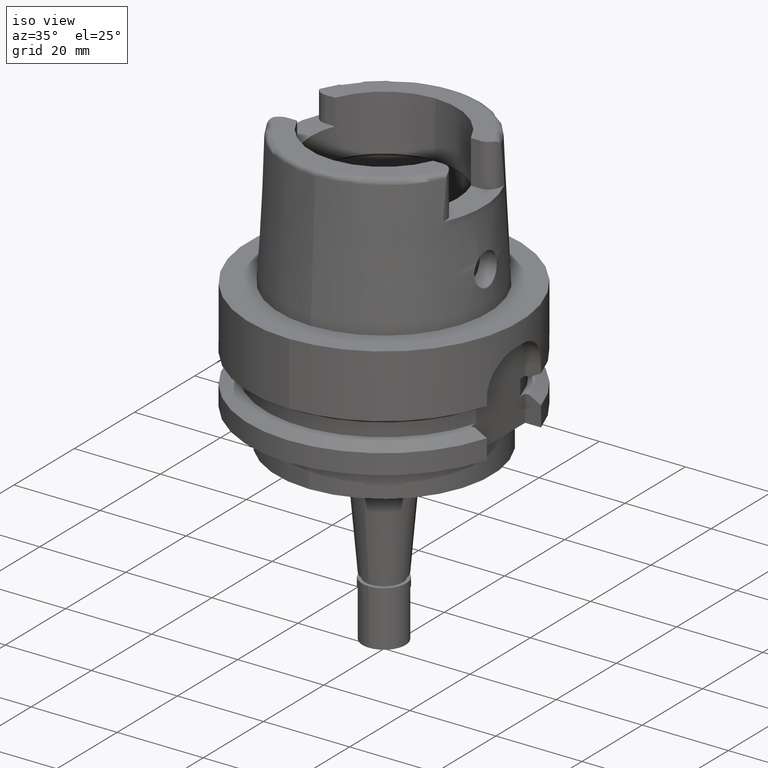
[diagram: clean part render]
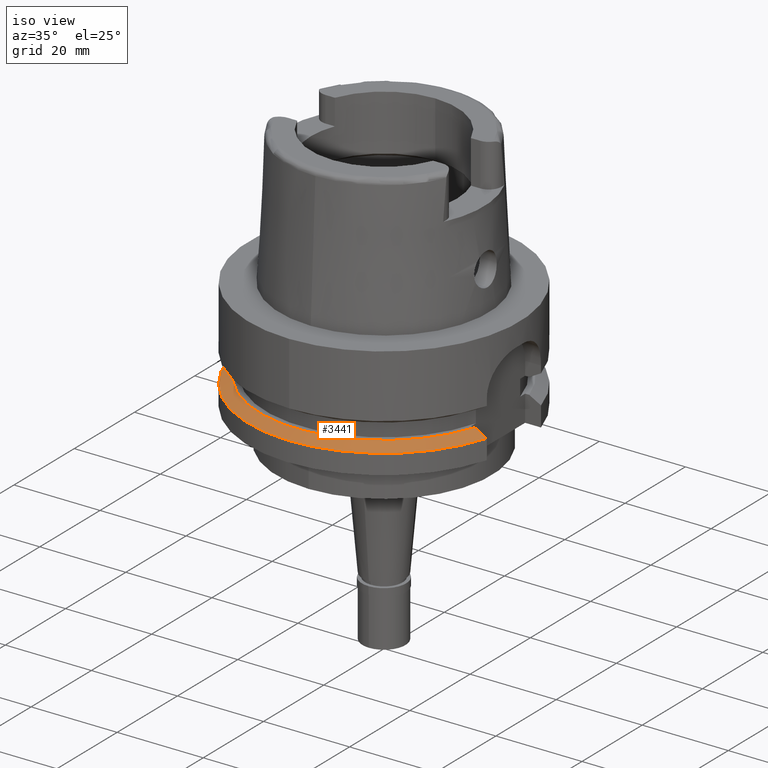
[diagram: same view with one face highlighted and labeled with its STEP entity id]
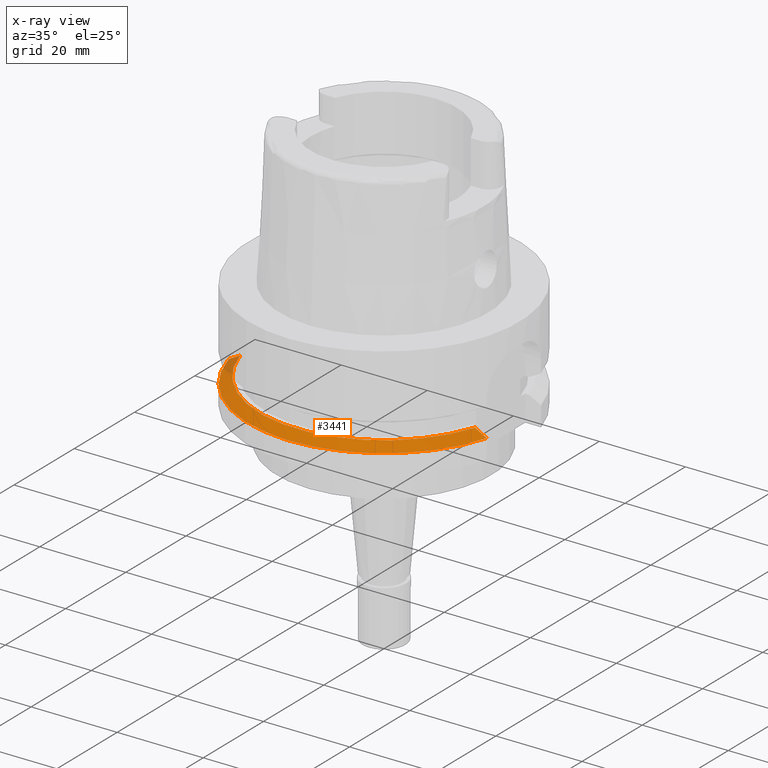
[diagram: x-ray of the same camera — body ghosted, the highlighted face saturated]
A machine part, iso view. The second image highlights one B-rep face of the part: STEP entity #3441.
The next image is the same camera in x-ray: the body ghosted, the highlighted face saturated — about 3% of this face is hidden behind the body in this view.
In plain terms, the highlighted conical surface has half-angle 60 deg.
Its self-contained STEP definition (entity closure, byte-faithful):
#46 = DIRECTION ( 'NONE',  ( 0.0000000000000000000, 0.0000000000000000000, -1.000000000000000000 ) ) ;
#138 = VERTEX_POINT ( 'NONE', #2067 ) ;
#348 = ORIENTED_EDGE ( 'NONE', *, *, #1354, .F. ) ;
#380 = AXIS2_PLACEMENT_3D ( 'NONE', #4680, #4738, #4629 ) ;
#512 = CARTESIAN_POINT ( 'NONE',  ( -28.06112407139000098, -7.999999497656000713, -20.03752483586999844 ) ) ;
#558 = CARTESIAN_POINT ( 'NONE',  ( -27.76817314708000239, -7.999999497656000713, -19.87500000000000000 ) ) ;
#559 = AXIS2_PLACEMENT_3D ( 'NONE', #3377, #3806, #5548 ) ;
#608 = ORIENTED_EDGE ( 'NONE', *, *, #902, .F. ) ;
#902 = EDGE_CURVE ( 'NONE', #5611, #1884, #3144, .T. ) ;
#952 = AXIS2_PLACEMENT_3D ( 'NONE', #2207, #46, #3511 ) ;
#1196 = CARTESIAN_POINT ( 'NONE',  ( 30.18691769625000276, -9.000000000000000000, -21.37749907476000288 ) ) ;
#1252 = CARTESIAN_POINT ( 'NONE',  ( 27.46035054492000071, -9.000000210231998921, -19.87500000000000000 ) ) ;
#1354 = EDGE_CURVE ( 'NONE', #5264, #5611, #5315, .T. ) ;
#1371 = CARTESIAN_POINT ( 'NONE',  ( -30.16036203970999807, -7.999999895275999862, -21.20615605078999977 ) ) ;
#1401 = CARTESIAN_POINT ( 'NONE',  ( -28.65165997724000135, -8.000000220463999057, -20.36554601773999806 ) ) ;
#1793 = ORIENTED_EDGE ( 'NONE', *, *, #5247, .F. ) ;
#1884 = VERTEX_POINT ( 'NONE', #558 ) ;
#1985 = CARTESIAN_POINT ( 'NONE',  ( -30.46719550065999726, -7.999999895275999862, -21.37749812408999972 ) ) ;
#2067 = CARTESIAN_POINT ( 'NONE',  ( 27.46035054492000071, -9.000000210231998921, -19.87500000000000000 ) ) ;
#2207 = CARTESIAN_POINT ( 'NONE',  ( 0.0000000000000000000, 0.0000000000000000000, -21.37749907476000288 ) ) ;
#2645 = CONICAL_SURFACE ( 'NONE', #380, 30.19879763209999979, 1.047197551196400456 ) ;
#2746 = CIRCLE ( 'NONE', #559, 28.89759526419000224 ) ;
#2981 = CARTESIAN_POINT ( 'NONE',  ( 29.87612642150000042, -9.000000694794000111, -21.20554916362999975 ) ) ;
#3127 = CARTESIAN_POINT ( 'NONE',  ( -27.76817314708000239, -7.999999497656000713, -19.87500000000000000 ) ) ;
#3144 = B_SPLINE_CURVE_WITH_KNOTS ( 'NONE', 3,
 ( #1985, #1371, #4405, #1401, #512, #3127 ),
 .UNSPECIFIED., .F., .F.,
 ( 4, 1, 1, 4 ),
 ( 0.0000000000000000000, 0.3333333333333000081, 0.6666666666667000474, 1.000000000000000000 ),
 .UNSPECIFIED. ) ;
#3254 = B_SPLINE_CURVE_WITH_KNOTS ( 'NONE', 3,
 ( #1252, #3352, #3462, #5201, #2981, #4286 ),
 .UNSPECIFIED., .F., .F.,
 ( 4, 1, 1, 4 ),
 ( 0.0000000000000000000, 0.3333333333333000081, 0.6666666666667000474, 1.000000000000000000 ),
 .UNSPECIFIED. ) ;
#3352 = CARTESIAN_POINT ( 'NONE',  ( 27.75547962709000060, -9.000000210231998921, -20.03691824779999919 ) ) ;
#3377 = CARTESIAN_POINT ( 'NONE',  ( 0.0000000000000000000, 0.0000000000000000000, -19.87500000000000000 ) ) ;
#3441 = ADVANCED_FACE ( 'NONE', ( #4308 ), #2645, .T. ) ;
#3462 = CARTESIAN_POINT ( 'NONE',  ( 28.35094031151999872, -8.999999994531000524, -20.36411380276000216 ) ) ;
#3511 = DIRECTION ( 'NONE',  ( 0.0000000000000000000, -1.000000000000000000, 0.0000000000000000000 ) ) ;
#3734 = CARTESIAN_POINT ( 'NONE',  ( -30.46719550065999726, -7.999999895275999862, -21.37749812408999972 ) ) ;
#3806 = DIRECTION ( 'NONE',  ( 0.0000000000000000000, 0.0000000000000000000, -1.000000000000000000 ) ) ;
#4092 = EDGE_CURVE ( 'NONE', #138, #1884, #2746, .T. ) ;
#4286 = CARTESIAN_POINT ( 'NONE',  ( 30.18691769625000276, -9.000000000000000000, -21.37749907476000288 ) ) ;
#4308 = FACE_OUTER_BOUND ( 'NONE', #4315, .T. ) ;
#4315 = EDGE_LOOP ( 'NONE', ( #348, #1793, #4954, #608 ) ) ;
#4405 = CARTESIAN_POINT ( 'NONE',  ( -29.55132669190999906, -7.999999981892000456, -20.86639286309999974 ) ) ;
#4629 = DIRECTION ( 'NONE',  ( 0.0000000000000000000, -1.000000000000000000, 0.0000000000000000000 ) ) ;
#4680 = CARTESIAN_POINT ( 'NONE',  ( 0.0000000000000000000, 0.0000000000000000000, -20.62624953738000144 ) ) ;
#4738 = DIRECTION ( 'NONE',  ( 0.0000000000000000000, 0.0000000000000000000, -1.000000000000000000 ) ) ;
#4954 = ORIENTED_EDGE ( 'NONE', *, *, #4092, .T. ) ;
#5201 = CARTESIAN_POINT ( 'NONE',  ( 29.25978794275000183, -8.999999703793999828, -20.86496377113000023 ) ) ;
#5247 = EDGE_CURVE ( 'NONE', #138, #5264, #3254, .T. ) ;
#5264 = VERTEX_POINT ( 'NONE', #1196 ) ;
#5315 = CIRCLE ( 'NONE', #952, 31.50000000000000000 ) ;
#5548 = DIRECTION ( 'NONE',  ( 0.0000000000000000000, -1.000000000000000000, 0.0000000000000000000 ) ) ;
#5611 = VERTEX_POINT ( 'NONE', #3734 ) ;